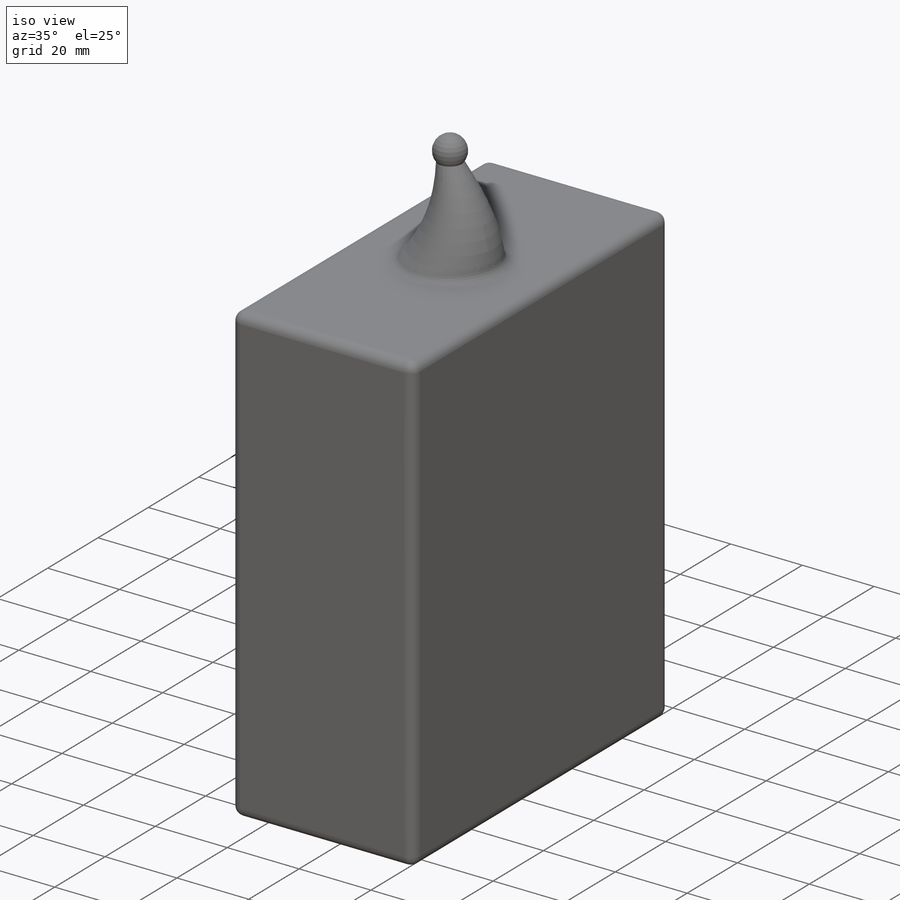
[diagram: iso view]
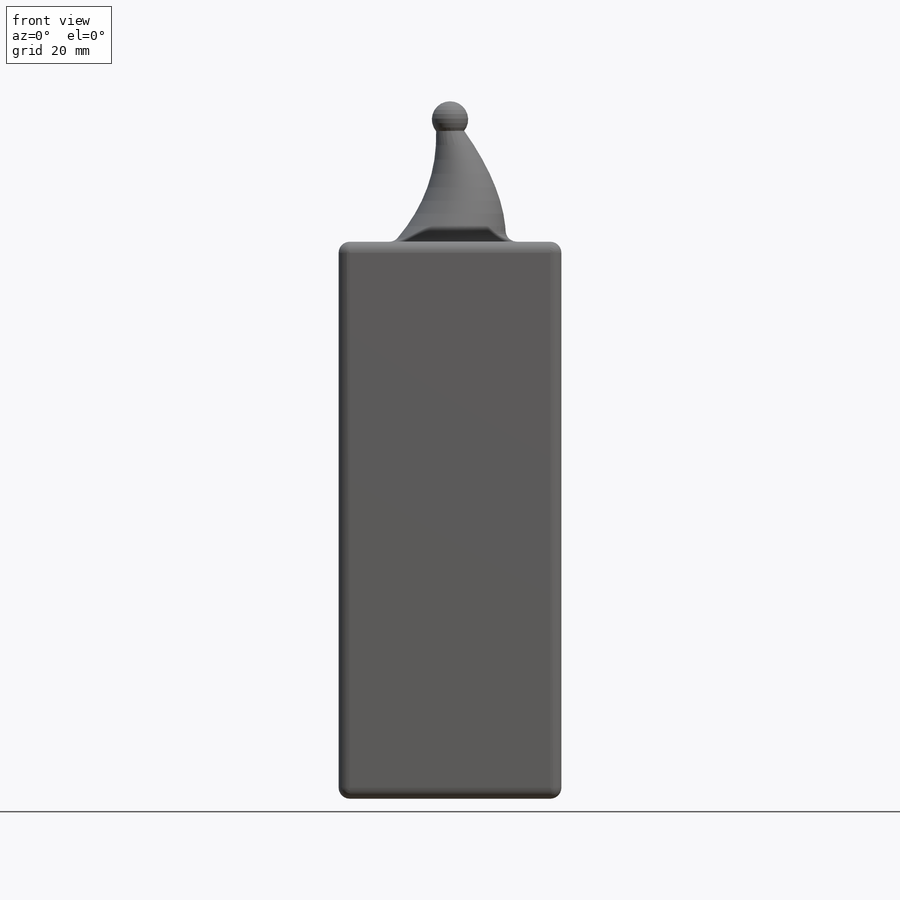
[diagram: front view]
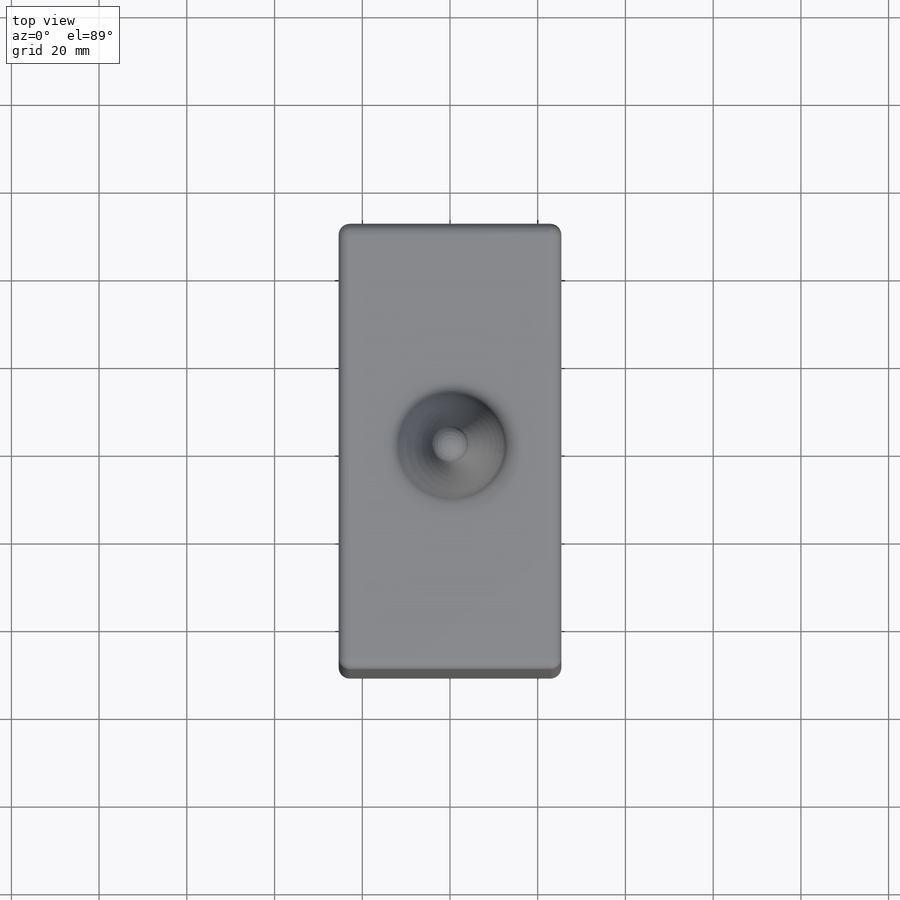
[diagram: top view]
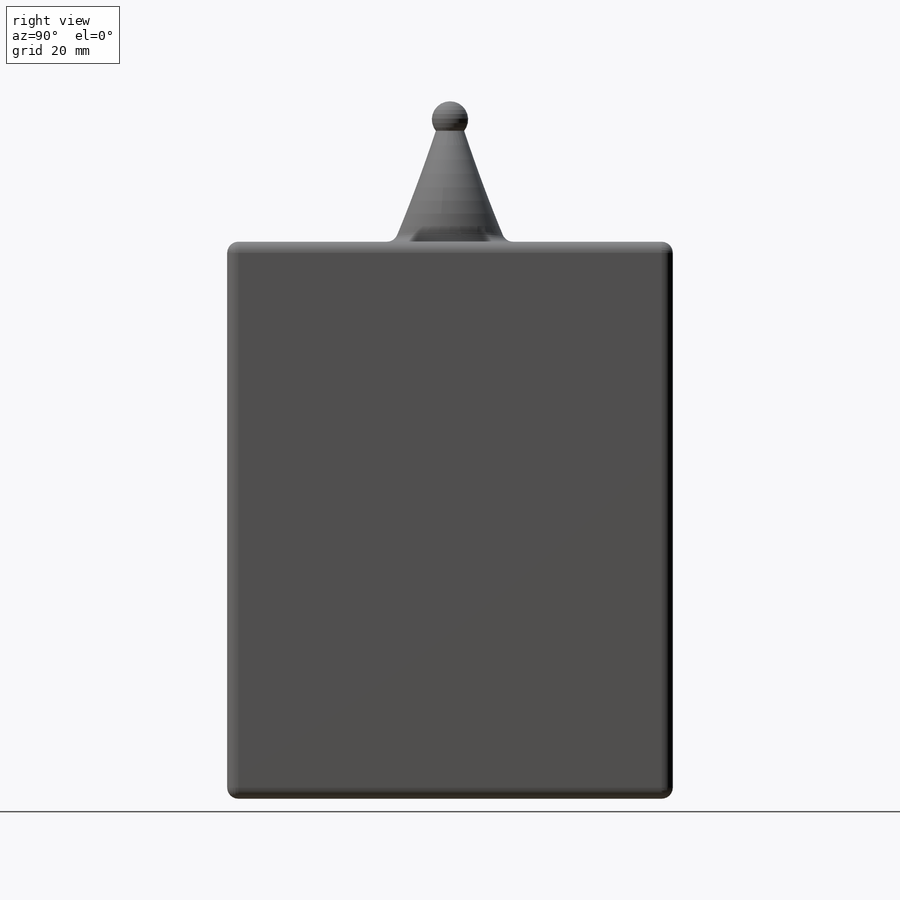
[diagram: right view]
SOLIDWORKS PART (.sldprt)
format: sldprt  version: not decoded by parser v0  size: 239,616 bytes
history: native  units: mm
features: sketch x5, material x1, extrude x1, plane x1, revolve x1, fillet x1 (+13 scaffold rows collapsed)
feature tree (23):
  scaffold x13  (default folders/planes/origin — collapsed)
  material  "Material <not specified>"
  sketch  "Sketch1"  dims[D1=101.6mm D2=50.8mm]
  extrude  "Boss-Extrude2"  Depth=127mm
  sketch  "Sketch2"  dims[D1=50.8mm]
  plane  "Plane1"  Offset=25.4mm
  sketch  "Sketch3"  dims[D1=6.35mm]
  sketch  "Sketch4"
  sketch  "Sketch5"
  revolve  "Revolve2"  Angle=360deg
  fillet  "Fillet1"  Radius=2.54mm
decode coverage: 6 of 8 modeling features carry decoded parameters
note: suppression state not decoded; provenance and decode notes live in map.json
